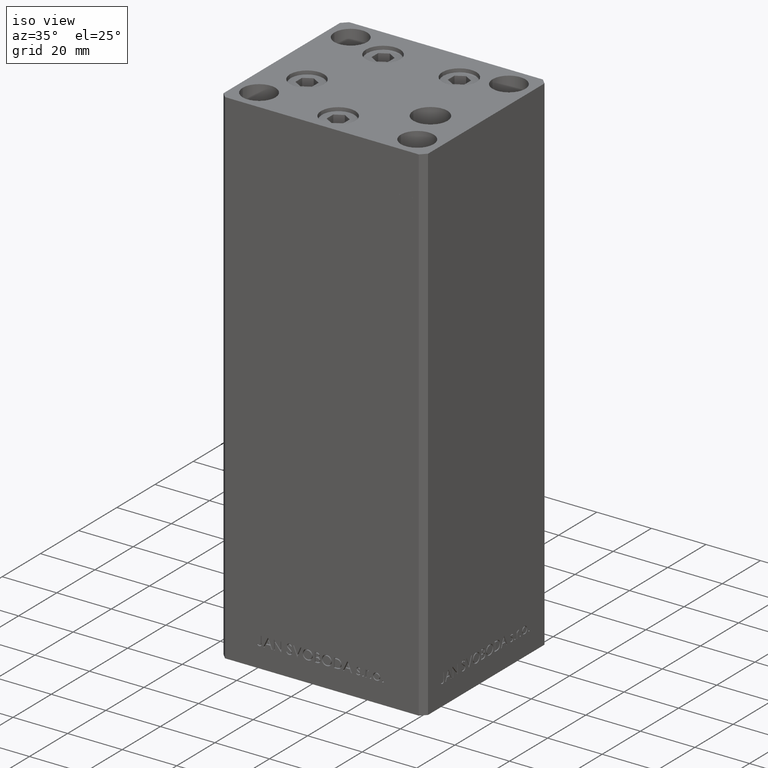
[diagram: clean part render]
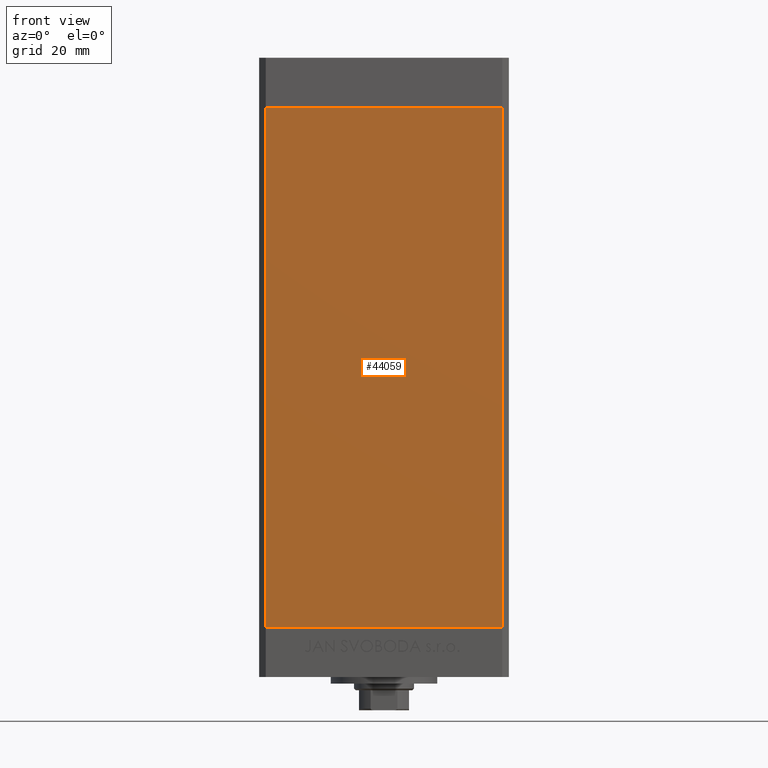
[diagram: tour spotlight — one face highlighted and labeled with its STEP entity id]
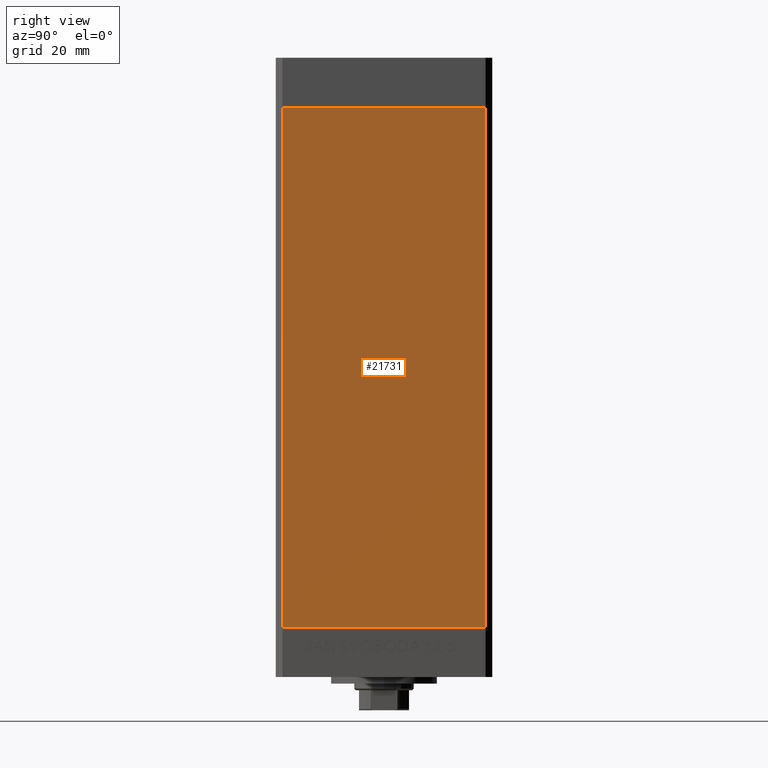
[diagram: tour spotlight — one face highlighted and labeled with its STEP entity id]
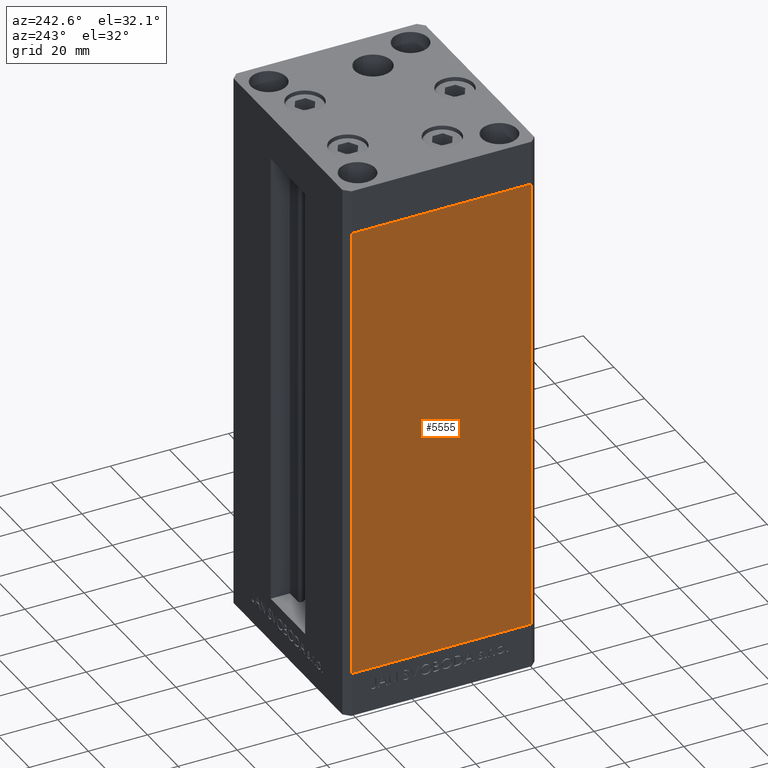
[diagram: tour spotlight — one face highlighted and labeled with its STEP entity id]
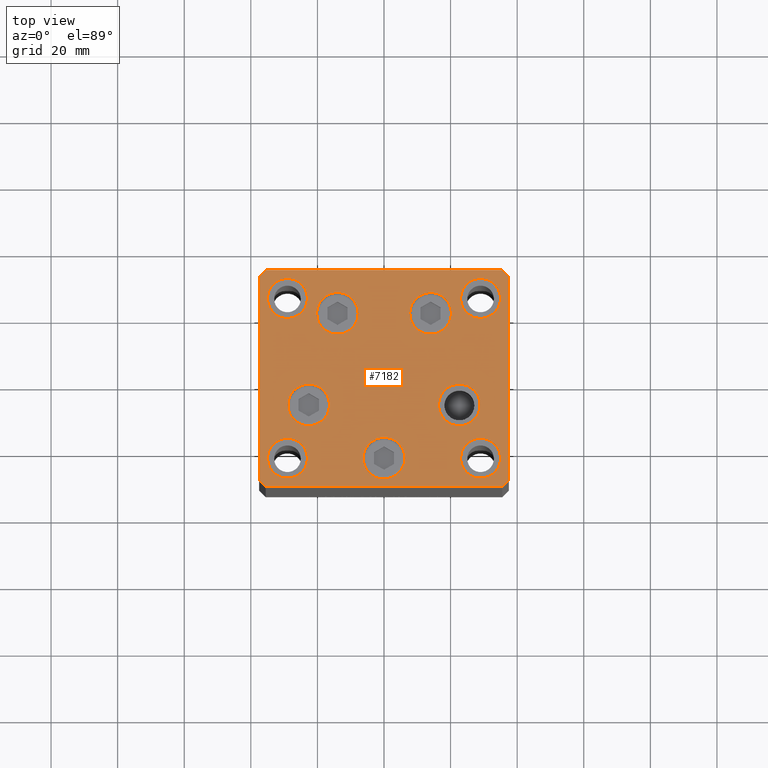
[diagram: tour spotlight — one face highlighted and labeled with its STEP entity id]
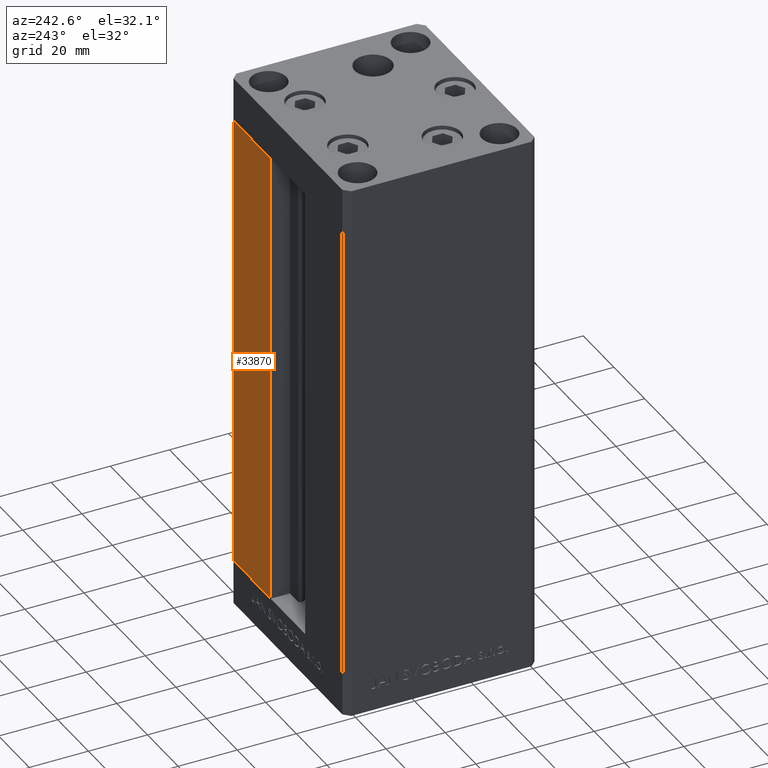
[diagram: tour spotlight — one face highlighted and labeled with its STEP entity id]
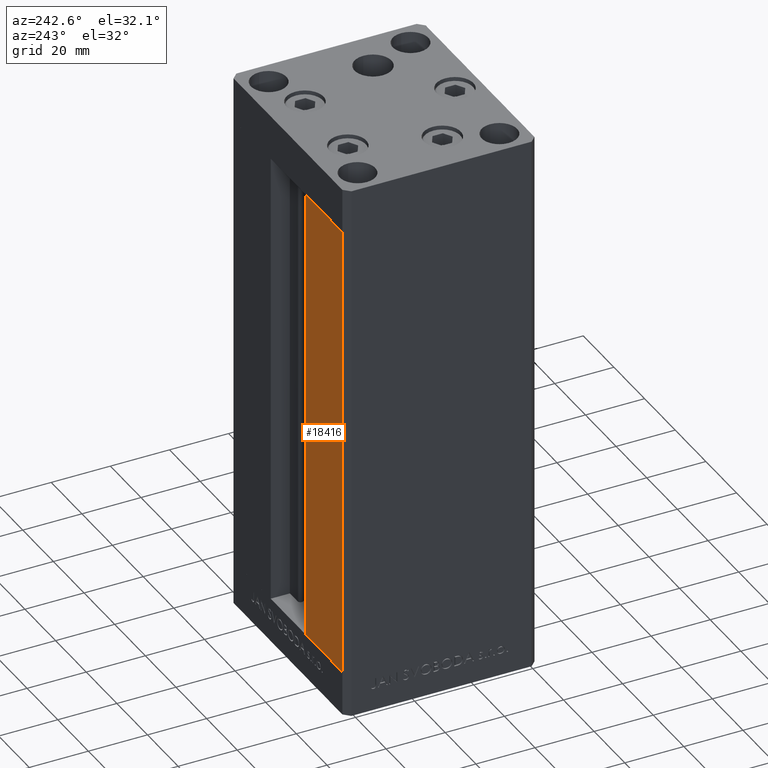
[diagram: tour spotlight — one face highlighted and labeled with its STEP entity id]
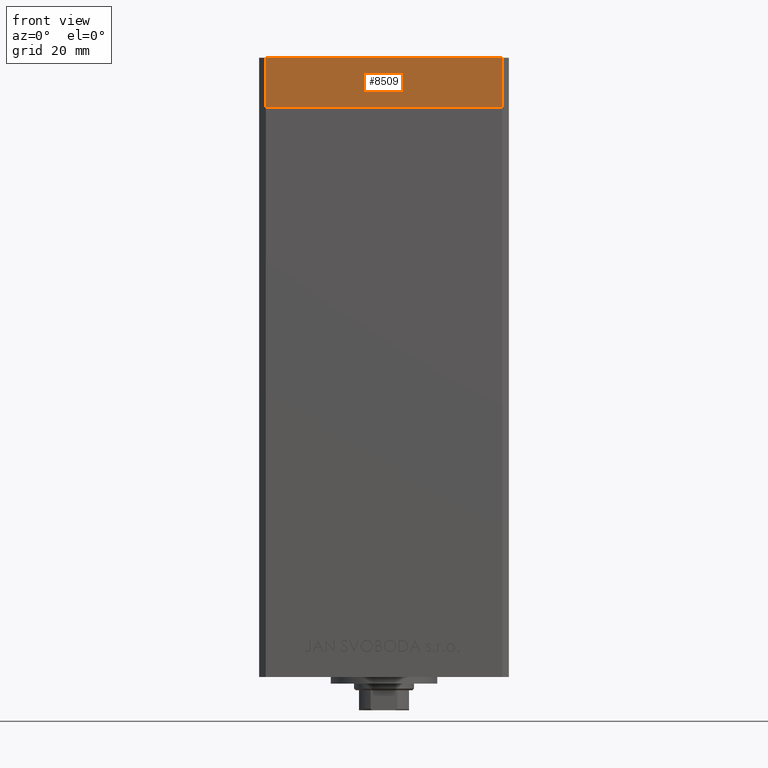
[diagram: tour spotlight — one face highlighted and labeled with its STEP entity id]
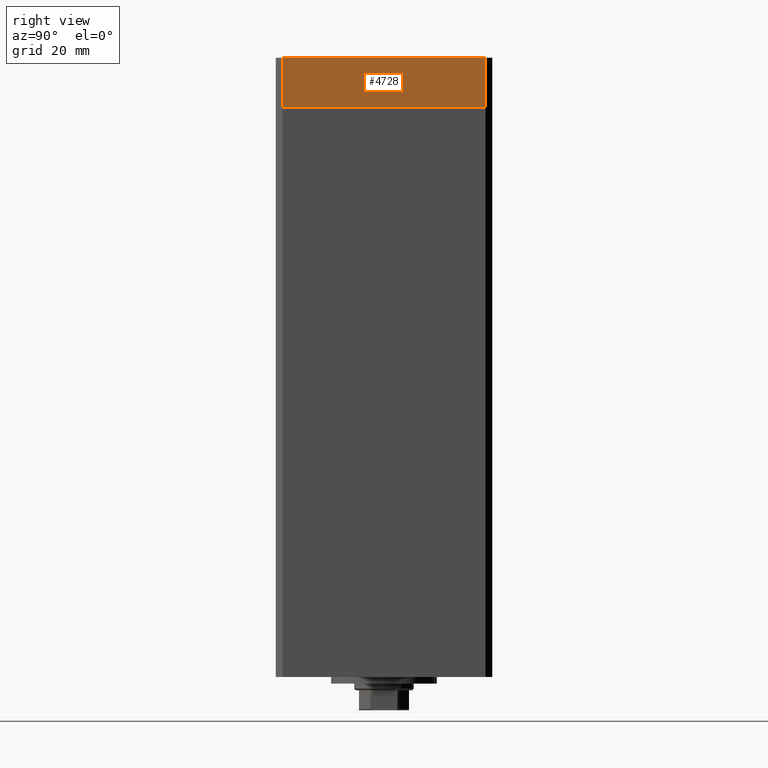
[diagram: tour spotlight — one face highlighted and labeled with its STEP entity id]
A machine part: a face-by-face anatomy tour. The part has 1159 B-rep faces; the first image is the clean iso view, then the 8 largest visible faces are spotlighted one at a time (largest first), each with its STEP entity span.

Face 1 — front view, entity #44059. In plain terms, the highlighted planar face has unit normal (0, 1, 0).
Definition (entity closure, byte-faithful):
#992 = VECTOR ( 'NONE', #23447, 1000.000000000000000 ) ;
#2630 = FACE_OUTER_BOUND ( 'NONE', #7012, .T. ) ;
#5835 = LINE ( 'NONE', #16482, #29723 ) ;
#7012 = EDGE_LOOP ( 'NONE', ( #22053, #7517, #36353, #34399 ) ) ;
#7517 = ORIENTED_EDGE ( 'NONE', *, *, #30264, .F. ) ;
#7868 = LINE ( 'NONE', #8341, #992 ) ;
#7996 = CARTESIAN_POINT ( 'NONE',  ( 35.49999999999999289, -32.50000000000000000, 156.0000000000000000 ) ) ;
#8341 = CARTESIAN_POINT ( 'NONE',  ( 35.49999999999999289, -32.50000000000000000, 156.0000000000000000 ) ) ;
#8815 = DIRECTION ( 'NONE',  ( -0.000000000000000000, -0.000000000000000000, -1.000000000000000000 ) ) ;
#12909 = CARTESIAN_POINT ( 'NONE',  ( -35.49999999999999289, -32.50000000000000000, 156.0000000000000000 ) ) ;
#13866 = VERTEX_POINT ( 'NONE', #18197 ) ;
#14238 = CARTESIAN_POINT ( 'NONE',  ( -35.49999999999999289, -32.50000000000000000, 0.000000000000000000 ) ) ;
#14625 = VECTOR ( 'NONE', #29338, 1000.000000000000000 ) ;
#16482 = CARTESIAN_POINT ( 'NONE',  ( -35.49999999999999289, -32.50000000000000000, 156.0000000000000000 ) ) ;
#16736 = VERTEX_POINT ( 'NONE', #32774 ) ;
#16975 = VERTEX_POINT ( 'NONE', #7996 ) ;
#17705 = PLANE ( 'NONE',  #36026 ) ;
#17947 = LINE ( 'NONE', #14238, #14625 ) ;
#18197 = CARTESIAN_POINT ( 'NONE',  ( -35.49999999999999289, -32.50000000000000000, 0.000000000000000000 ) ) ;
#22053 = ORIENTED_EDGE ( 'NONE', *, *, #35887, .T. ) ;
#23447 = DIRECTION ( 'NONE',  ( -0.000000000000000000, -0.000000000000000000, -1.000000000000000000 ) ) ;
#26581 = DIRECTION ( 'NONE',  ( 0.000000000000000000, -0.000000000000000000, 1.000000000000000000 ) ) ;
#28709 = EDGE_CURVE ( 'NONE', #43518, #16975, #39405, .T. ) ;
#29338 = DIRECTION ( 'NONE',  ( 1.000000000000000000, 0.000000000000000000, 0.000000000000000000 ) ) ;
#29723 = VECTOR ( 'NONE', #8815, 1000.000000000000000 ) ;
#30264 = EDGE_CURVE ( 'NONE', #16975, #16736, #7868, .T. ) ;
#30732 = CARTESIAN_POINT ( 'NONE',  ( -35.49999999999999289, -32.50000000000000000, 156.0000000000000000 ) ) ;
#31781 = VECTOR ( 'NONE', #47564, 1000.000000000000000 ) ;
#32774 = CARTESIAN_POINT ( 'NONE',  ( 35.49999999999999289, -32.50000000000000000, 0.000000000000000000 ) ) ;
#32804 = CARTESIAN_POINT ( 'NONE',  ( -35.49999999999999289, -32.50000000000000000, 156.0000000000000000 ) ) ;
#34399 = ORIENTED_EDGE ( 'NONE', *, *, #43949, .T. ) ;
#35887 = EDGE_CURVE ( 'NONE', #13866, #16736, #17947, .T. ) ;
#36026 = AXIS2_PLACEMENT_3D ( 'NONE', #32804, #47896, #26581 ) ;
#36353 = ORIENTED_EDGE ( 'NONE', *, *, #28709, .F. ) ;
#39405 = LINE ( 'NONE', #12909, #31781 ) ;
#43518 = VERTEX_POINT ( 'NONE', #30732 ) ;
#43949 = EDGE_CURVE ( 'NONE', #43518, #13866, #5835, .T. ) ;
#44059 = ADVANCED_FACE ( 'NONE', ( #2630 ), #17705, .F. ) ;
#47564 = DIRECTION ( 'NONE',  ( 1.000000000000000000, 0.000000000000000000, 0.000000000000000000 ) ) ;
#47896 = DIRECTION ( 'NONE',  ( 0.000000000000000000, 1.000000000000000000, 0.000000000000000000 ) ) ;

Face 2 — right view, entity #21731. In plain terms, the highlighted planar face has unit normal (1, -0, 0).
Definition (entity closure, byte-faithful):
#2044 = VECTOR ( 'NONE', #20394, 1000.000000000000000 ) ;
#2454 = AXIS2_PLACEMENT_3D ( 'NONE', #35882, #9660, #32430 ) ;
#2867 = VECTOR ( 'NONE', #22385, 1000.000000000000000 ) ;
#3361 = VECTOR ( 'NONE', #32575, 1000.000000000000000 ) ;
#4114 = CARTESIAN_POINT ( 'NONE',  ( 37.49999999999999289, -30.50000000000000000, 0.000000000000000000 ) ) ;
#4517 = EDGE_CURVE ( 'NONE', #35596, #24764, #21633, .T. ) ;
#9660 = DIRECTION ( 'NONE',  ( 1.000000000000000000, -2.275047181608927644E-16, 0.000000000000000000 ) ) ;
#10040 = VECTOR ( 'NONE', #33015, 1000.000000000000000 ) ;
#12691 = CARTESIAN_POINT ( 'NONE',  ( 37.49999999999999289, -30.50000000000000000, 156.0000000000000000 ) ) ;
#12972 = CARTESIAN_POINT ( 'NONE',  ( 37.50000000000000711, 30.50000000000000000, 156.0000000000000000 ) ) ;
#13665 = ORIENTED_EDGE ( 'NONE', *, *, #4517, .F. ) ;
#17167 = LINE ( 'NONE', #21138, #2044 ) ;
#18394 = CARTESIAN_POINT ( 'NONE',  ( 37.50000000000000711, 30.50000000000000000, 0.000000000000000000 ) ) ;
#20317 = ORIENTED_EDGE ( 'NONE', *, *, #37857, .F. ) ;
#20394 = DIRECTION ( 'NONE',  ( -0.000000000000000000, -0.000000000000000000, -1.000000000000000000 ) ) ;
#21138 = CARTESIAN_POINT ( 'NONE',  ( 37.50000000000000711, 30.50000000000000000, 156.0000000000000000 ) ) ;
#21448 = CARTESIAN_POINT ( 'NONE',  ( 37.50000000000000711, 30.50000000000000000, 156.0000000000000000 ) ) ;
#21633 = LINE ( 'NONE', #18394, #10040 ) ;
#21731 = ADVANCED_FACE ( 'NONE', ( #24993 ), #35645, .T. ) ;
#21934 = LINE ( 'NONE', #21448, #3361 ) ;
#22385 = DIRECTION ( 'NONE',  ( -0.000000000000000000, -0.000000000000000000, -1.000000000000000000 ) ) ;
#24764 = VERTEX_POINT ( 'NONE', #4114 ) ;
#24993 = FACE_OUTER_BOUND ( 'NONE', #33254, .T. ) ;
#27808 = ORIENTED_EDGE ( 'NONE', *, *, #39701, .T. ) ;
#29394 = CARTESIAN_POINT ( 'NONE',  ( 37.50000000000000711, 30.50000000000000000, 0.000000000000000000 ) ) ;
#29649 = EDGE_CURVE ( 'NONE', #33985, #40624, #21934, .T. ) ;
#32430 = DIRECTION ( 'NONE',  ( 2.275047181608927644E-16, 1.000000000000000000, 0.000000000000000000 ) ) ;
#32575 = DIRECTION ( 'NONE',  ( -2.275047181608927644E-16, -1.000000000000000000, 0.000000000000000000 ) ) ;
#33015 = DIRECTION ( 'NONE',  ( -2.275047181608927644E-16, -1.000000000000000000, 0.000000000000000000 ) ) ;
#33254 = EDGE_LOOP ( 'NONE', ( #13665, #20317, #36878, #27808 ) ) ;
#33985 = VERTEX_POINT ( 'NONE', #12972 ) ;
#35596 = VERTEX_POINT ( 'NONE', #29394 ) ;
#35645 = PLANE ( 'NONE',  #2454 ) ;
#35882 = CARTESIAN_POINT ( 'NONE',  ( 37.50000000000000711, 30.50000000000000000, 156.0000000000000000 ) ) ;
#36878 = ORIENTED_EDGE ( 'NONE', *, *, #29649, .T. ) ;
#37004 = LINE ( 'NONE', #37712, #2867 ) ;
#37712 = CARTESIAN_POINT ( 'NONE',  ( 37.49999999999999289, -30.50000000000000000, 156.0000000000000000 ) ) ;
#37857 = EDGE_CURVE ( 'NONE', #33985, #35596, #17167, .T. ) ;
#39701 = EDGE_CURVE ( 'NONE', #40624, #24764, #37004, .T. ) ;
#40624 = VERTEX_POINT ( 'NONE', #12691 ) ;

Face 3 — auxiliary view, entity #5555. In plain terms, the highlighted planar face has unit normal (1, 0, 0).
Definition (entity closure, byte-faithful):
#193 = EDGE_LOOP ( 'NONE', ( #43047, #21034, #38198, #31215 ) ) ;
#497 = VERTEX_POINT ( 'NONE', #13589 ) ;
#518 = DIRECTION ( 'NONE',  ( 1.000000000000000000, 2.275047181608927644E-16, -0.000000000000000000 ) ) ;
#3760 = LINE ( 'NONE', #35872, #41253 ) ;
#5555 = ADVANCED_FACE ( 'NONE', ( #19799 ), #26735, .F. ) ;
#8717 = DIRECTION ( 'NONE',  ( 2.275047181608927644E-16, -1.000000000000000000, 0.000000000000000000 ) ) ;
#12348 = VECTOR ( 'NONE', #15077, 1000.000000000000000 ) ;
#12897 = VECTOR ( 'NONE', #8717, 1000.000000000000000 ) ;
#13589 = CARTESIAN_POINT ( 'NONE',  ( -37.50000000000000711, 30.50000000000000000, 156.0000000000000000 ) ) ;
#15077 = DIRECTION ( 'NONE',  ( -0.000000000000000000, -0.000000000000000000, -1.000000000000000000 ) ) ;
#19799 = FACE_OUTER_BOUND ( 'NONE', #193, .T. ) ;
#20337 = CARTESIAN_POINT ( 'NONE',  ( -37.50000000000000711, 30.50000000000000000, 156.0000000000000000 ) ) ;
#21034 = ORIENTED_EDGE ( 'NONE', *, *, #28871, .F. ) ;
#22566 = DIRECTION ( 'NONE',  ( 2.275047181608927644E-16, -1.000000000000000000, 0.000000000000000000 ) ) ;
#25513 = CARTESIAN_POINT ( 'NONE',  ( -37.49999999999999289, -30.50000000000000000, 0.000000000000000000 ) ) ;
#26735 = PLANE ( 'NONE',  #33788 ) ;
#28871 = EDGE_CURVE ( 'NONE', #40020, #47907, #3760, .T. ) ;
#29301 = CARTESIAN_POINT ( 'NONE',  ( -37.50000000000000711, 30.50000000000000000, 0.000000000000000000 ) ) ;
#30000 = CARTESIAN_POINT ( 'NONE',  ( -37.50000000000000711, 30.50000000000000000, 0.000000000000000000 ) ) ;
#30946 = DIRECTION ( 'NONE',  ( -2.275047181608927644E-16, 1.000000000000000000, 0.000000000000000000 ) ) ;
#31003 = LINE ( 'NONE', #20337, #12897 ) ;
#31215 = ORIENTED_EDGE ( 'NONE', *, *, #45069, .T. ) ;
#32279 = EDGE_CURVE ( 'NONE', #497, #40020, #31003, .T. ) ;
#33653 = LINE ( 'NONE', #37359, #12348 ) ;
#33788 = AXIS2_PLACEMENT_3D ( 'NONE', #48779, #518, #30946 ) ;
#34700 = CARTESIAN_POINT ( 'NONE',  ( -37.49999999999999289, -30.50000000000000000, 156.0000000000000000 ) ) ;
#35018 = EDGE_CURVE ( 'NONE', #37932, #47907, #45567, .T. ) ;
#35872 = CARTESIAN_POINT ( 'NONE',  ( -37.49999999999999289, -30.50000000000000000, 156.0000000000000000 ) ) ;
#37359 = CARTESIAN_POINT ( 'NONE',  ( -37.50000000000000711, 30.50000000000000000, 156.0000000000000000 ) ) ;
#37932 = VERTEX_POINT ( 'NONE', #29301 ) ;
#38198 = ORIENTED_EDGE ( 'NONE', *, *, #32279, .F. ) ;
#40020 = VERTEX_POINT ( 'NONE', #34700 ) ;
#41253 = VECTOR ( 'NONE', #47009, 1000.000000000000000 ) ;
#43047 = ORIENTED_EDGE ( 'NONE', *, *, #35018, .T. ) ;
#45069 = EDGE_CURVE ( 'NONE', #497, #37932, #33653, .T. ) ;
#45567 = LINE ( 'NONE', #30000, #47781 ) ;
#47009 = DIRECTION ( 'NONE',  ( -0.000000000000000000, -0.000000000000000000, -1.000000000000000000 ) ) ;
#47781 = VECTOR ( 'NONE', #22566, 1000.000000000000000 ) ;
#47907 = VERTEX_POINT ( 'NONE', #25513 ) ;
#48779 = CARTESIAN_POINT ( 'NONE',  ( -37.50000000000000711, 30.50000000000000000, 156.0000000000000000 ) ) ;

Face 4 — top view, entity #7182. In plain terms, the highlighted planar face has unit normal (0, 0, 1).
Definition (entity closure, byte-faithful):
#17 = CIRCLE ( 'NONE', #15791, 6.000000000000005329 ) ;
#29 = DIRECTION ( 'NONE',  ( 1.000000000000000000, 0.000000000000000000, 0.000000000000000000 ) ) ;
#100 = CARTESIAN_POINT ( 'NONE',  ( 28.87741699796952233, -8.000000000000000000, 0.000000000000000000 ) ) ;
#175 = CARTESIAN_POINT ( 'NONE',  ( -13.99106857963322703, 19.49999999999999645, 0.000000000000000000 ) ) ;
#525 = DIRECTION ( 'NONE',  ( 1.000000000000000000, 0.000000000000000000, 0.000000000000000000 ) ) ;
#534 = CARTESIAN_POINT ( 'NONE',  ( 2.939152317953647500E-15, -24.00000000000000000, 0.000000000000000000 ) ) ;
#569 = ORIENTED_EDGE ( 'NONE', *, *, #34116, .T. ) ;
#624 = VERTEX_POINT ( 'NONE', #6434 ) ;
#862 = PLANE ( 'NONE',  #5263 ) ;
#906 = DIRECTION ( 'NONE',  ( 0.000000000000000000, -0.000000000000000000, -1.000000000000000000 ) ) ;
#935 = CARTESIAN_POINT ( 'NONE',  ( -23.00000000000001421, 24.00000000000000711, 0.000000000000000000 ) ) ;
#1019 = CARTESIAN_POINT ( 'NONE',  ( -29.00000000000001066, 24.00000000000000711, 0.000000000000000000 ) ) ;
#1531 = DIRECTION ( 'NONE',  ( 0.000000000000000000, 0.000000000000000000, 1.000000000000000000 ) ) ;
#1570 = CARTESIAN_POINT ( 'NONE',  ( -35.50000000000002842, 32.49999999999999289, 0.000000000000000000 ) ) ;
#2186 = VERTEX_POINT ( 'NONE', #15656 ) ;
#2360 = CARTESIAN_POINT ( 'NONE',  ( -23.00000000000001421, -23.99999999999999289, 0.000000000000000000 ) ) ;
#2364 = ORIENTED_EDGE ( 'NONE', *, *, #12360, .T. ) ;
#3194 = CARTESIAN_POINT ( 'NONE',  ( -22.62741699796951877, -8.000000000000005329, 0.000000000000000000 ) ) ;
#3740 = DIRECTION ( 'NONE',  ( 0.000000000000000000, 0.000000000000000000, 1.000000000000000000 ) ) ;
#3830 = AXIS2_PLACEMENT_3D ( 'NONE', #44115, #48077, #35273 ) ;
#3870 = VECTOR ( 'NONE', #27285, 1000.000000000000000 ) ;
#4244 = DIRECTION ( 'NONE',  ( 0.000000000000000000, -0.000000000000000000, -1.000000000000000000 ) ) ;
#4265 = CIRCLE ( 'NONE', #14554, 6.250000000000000000 ) ;
#4298 = AXIS2_PLACEMENT_3D ( 'NONE', #1019, #46537, #15616 ) ;
#4326 = EDGE_CURVE ( 'NONE', #16864, #2186, #12388, .T. ) ;
#4519 = VERTEX_POINT ( 'NONE', #21873 ) ;
#4538 = AXIS2_PLACEMENT_3D ( 'NONE', #44750, #10846, #37556 ) ;
#4551 = LINE ( 'NONE', #41653, #44058 ) ;
#4582 = FACE_BOUND ( 'NONE', #27796, .T. ) ;
#4634 = DIRECTION ( 'NONE',  ( 0.000000000000000000, 0.000000000000000000, 1.000000000000000000 ) ) ;
#4796 = CARTESIAN_POINT ( 'NONE',  ( 23.00000000000001066, -23.99999999999999289, 0.000000000000000000 ) ) ;
#4902 = EDGE_CURVE ( 'NONE', #10477, #31924, #26624, .T. ) ;
#5032 = ORIENTED_EDGE ( 'NONE', *, *, #39802, .T. ) ;
#5263 = AXIS2_PLACEMENT_3D ( 'NONE', #35000, #28237, #19663 ) ;
#5302 = AXIS2_PLACEMENT_3D ( 'NONE', #18825, #3740, #29 ) ;
#5408 = CIRCLE ( 'NONE', #41747, 6.250000000000000000 ) ;
#5634 = ORIENTED_EDGE ( 'NONE', *, *, #41973, .T. ) ;
#5639 = DIRECTION ( 'NONE',  ( 0.000000000000000000, 0.000000000000000000, 1.000000000000000000 ) ) ;
#5700 = CARTESIAN_POINT ( 'NONE',  ( 37.49999999999992184, 30.50000000000001066, 0.000000000000000000 ) ) ;
#5724 = FACE_BOUND ( 'NONE', #33645, .T. ) ;
#5738 = ORIENTED_EDGE ( 'NONE', *, *, #33249, .T. ) ;
#5824 = ORIENTED_EDGE ( 'NONE', *, *, #16848, .T. ) ;
#5936 = DIRECTION ( 'NONE',  ( 0.000000000000000000, 0.000000000000000000, 1.000000000000000000 ) ) ;
#6012 = DIRECTION ( 'NONE',  ( 1.000000000000000000, 0.000000000000000000, 0.000000000000000000 ) ) ;
#6434 = CARTESIAN_POINT ( 'NONE',  ( -35.50000000000002842, 32.49999999999999289, 0.000000000000000000 ) ) ;
#6482 = EDGE_LOOP ( 'NONE', ( #22228, #9236 ) ) ;
#6638 = CARTESIAN_POINT ( 'NONE',  ( -37.49999999999998579, -30.50000000000001421, 0.000000000000000000 ) ) ;
#6676 = AXIS2_PLACEMENT_3D ( 'NONE', #534, #4244, #19329 ) ;
#6698 = CARTESIAN_POINT ( 'NONE',  ( 37.50000000000001421, -30.50000000000000711, 0.000000000000000000 ) ) ;
#6829 = CIRCLE ( 'NONE', #11578, 5.999999999999998224 ) ;
#7182 = ADVANCED_FACE ( 'NONE', ( #28733, #47537, #32200, #4582, #38465, #5724, #36409, #31949, #13127, #23369 ), #862, .T. ) ;
#7215 = CIRCLE ( 'NONE', #8010, 6.250000000000000000 ) ;
#7571 = EDGE_CURVE ( 'NONE', #15423, #40341, #47235, .T. ) ;
#7627 = EDGE_CURVE ( 'NONE', #35674, #18314, #32146, .T. ) ;
#7963 = CARTESIAN_POINT ( 'NONE',  ( -20.24106857963322881, 19.49999999999999645, 0.000000000000000000 ) ) ;
#8010 = AXIS2_PLACEMENT_3D ( 'NONE', #11218, #34004, #45361 ) ;
#8139 = EDGE_CURVE ( 'NONE', #23921, #22955, #47363, .T. ) ;
#8219 = ORIENTED_EDGE ( 'NONE', *, *, #4326, .T. ) ;
#8617 = CIRCLE ( 'NONE', #14950, 6.000000000000005329 ) ;
#9212 = AXIS2_PLACEMENT_3D ( 'NONE', #3194, #33381, #37093 ) ;
#9236 = ORIENTED_EDGE ( 'NONE', *, *, #45558, .F. ) ;
#9432 = CIRCLE ( 'NONE', #22100, 6.000000000000005329 ) ;
#9470 = CARTESIAN_POINT ( 'NONE',  ( -35.49999999999998579, -32.50000000000001421, 0.000000000000000000 ) ) ;
#9813 = CARTESIAN_POINT ( 'NONE',  ( 35.50000000000000711, -32.50000000000000711, 0.000000000000000000 ) ) ;
#9835 = DIRECTION ( 'NONE',  ( 1.000000000000000000, 0.000000000000000000, 0.000000000000000000 ) ) ;
#9899 = DIRECTION ( 'NONE',  ( 1.000000000000000000, 0.000000000000000000, 0.000000000000000000 ) ) ;
#9915 = VERTEX_POINT ( 'NONE', #24793 ) ;
#9979 = VERTEX_POINT ( 'NONE', #27476 ) ;
#10231 = DIRECTION ( 'NONE',  ( 1.000000000000000000, 0.000000000000000000, 0.000000000000000000 ) ) ;
#10339 = CARTESIAN_POINT ( 'NONE',  ( -35.49999999999998579, -32.50000000000001421, 0.000000000000000000 ) ) ;
#10399 = VERTEX_POINT ( 'NONE', #38979 ) ;
#10477 = VERTEX_POINT ( 'NONE', #2360 ) ;
#10846 = DIRECTION ( 'NONE',  ( 0.000000000000000000, -0.000000000000000000, -1.000000000000000000 ) ) ;
#11218 = CARTESIAN_POINT ( 'NONE',  ( 2.939152317953647500E-15, -24.00000000000000000, 0.000000000000000000 ) ) ;
#11238 = EDGE_CURVE ( 'NONE', #22892, #41286, #5408, .T. ) ;
#11578 = AXIS2_PLACEMENT_3D ( 'NONE', #40161, #33482, #10231 ) ;
#11615 = VECTOR ( 'NONE', #40057, 1000.000000000000000 ) ;
#11898 = CARTESIAN_POINT ( 'NONE',  ( 6.250000000000002665, -24.00000000000000000, 0.000000000000000000 ) ) ;
#11924 = EDGE_CURVE ( 'NONE', #45095, #16274, #36135, .T. ) ;
#12029 = EDGE_CURVE ( 'NONE', #42327, #9915, #29128, .T. ) ;
#12044 = CARTESIAN_POINT ( 'NONE',  ( -7.741068579633227031, 19.49999999999999645, 0.000000000000000000 ) ) ;
#12048 = ORIENTED_EDGE ( 'NONE', *, *, #41593, .F. ) ;
#12117 = ORIENTED_EDGE ( 'NONE', *, *, #18415, .T. ) ;
#12360 = EDGE_CURVE ( 'NONE', #34951, #15423, #22207, .T. ) ;
#12388 = CIRCLE ( 'NONE', #4538, 6.250000000000001776 ) ;
#12596 = EDGE_CURVE ( 'NONE', #9979, #10399, #46492, .T. ) ;
#12683 = LINE ( 'NONE', #1570, #18669 ) ;
#12988 = DIRECTION ( 'NONE',  ( 1.000000000000000000, 0.000000000000000000, 0.000000000000000000 ) ) ;
#13127 = FACE_BOUND ( 'NONE', #48192, .T. ) ;
#14288 = ORIENTED_EDGE ( 'NONE', *, *, #17909, .F. ) ;
#14554 = AXIS2_PLACEMENT_3D ( 'NONE', #34188, #19321, #525 ) ;
#14890 = VECTOR ( 'NONE', #44046, 999.9999999999998863 ) ;
#14950 = AXIS2_PLACEMENT_3D ( 'NONE', #25109, #41178, #33037 ) ;
#15423 = VERTEX_POINT ( 'NONE', #9813 ) ;
#15534 = VECTOR ( 'NONE', #25820, 1000.000000000000000 ) ;
#15616 = DIRECTION ( 'NONE',  ( 1.000000000000000000, 0.000000000000000000, 0.000000000000000000 ) ) ;
#15656 = CARTESIAN_POINT ( 'NONE',  ( 16.37741699796951877, -8.000000000000000000, 0.000000000000000000 ) ) ;
#15791 = AXIS2_PLACEMENT_3D ( 'NONE', #39484, #4634, #12988 ) ;
#15909 = LINE ( 'NONE', #34733, #3870 ) ;
#15925 = DIRECTION ( 'NONE',  ( -0.7071067811865426878, -0.7071067811865524577, 0.000000000000000000 ) ) ;
#16217 = EDGE_LOOP ( 'NONE', ( #27871, #8219 ) ) ;
#16222 = DIRECTION ( 'NONE',  ( 1.000000000000000000, 0.000000000000000000, 0.000000000000000000 ) ) ;
#16274 = VERTEX_POINT ( 'NONE', #26915 ) ;
#16848 = EDGE_CURVE ( 'NONE', #16274, #624, #15909, .T. ) ;
#16864 = VERTEX_POINT ( 'NONE', #100 ) ;
#17349 = VECTOR ( 'NONE', #33177, 1000.000000000000000 ) ;
#17841 = ORIENTED_EDGE ( 'NONE', *, *, #11924, .T. ) ;
#17909 = EDGE_CURVE ( 'NONE', #23624, #40362, #8617, .T. ) ;
#18314 = VERTEX_POINT ( 'NONE', #27486 ) ;
#18415 = EDGE_CURVE ( 'NONE', #40341, #45095, #21546, .T. ) ;
#18669 = VECTOR ( 'NONE', #15925, 1000.000000000000000 ) ;
#18805 = EDGE_CURVE ( 'NONE', #40362, #23624, #9432, .T. ) ;
#18825 = CARTESIAN_POINT ( 'NONE',  ( -29.00000000000001066, -23.99999999999999289, 0.000000000000000000 ) ) ;
#19270 = CARTESIAN_POINT ( 'NONE',  ( 37.49999999999992184, 30.50000000000001066, 0.000000000000000000 ) ) ;
#19310 = CIRCLE ( 'NONE', #6676, 6.250000000000000000 ) ;
#19321 = DIRECTION ( 'NONE',  ( 0.000000000000000000, -0.000000000000000000, -1.000000000000000000 ) ) ;
#19329 = DIRECTION ( 'NONE',  ( 1.000000000000000000, 0.000000000000000000, 0.000000000000000000 ) ) ;
#19663 = DIRECTION ( 'NONE',  ( 1.000000000000000000, 0.000000000000000000, 0.000000000000000000 ) ) ;
#19864 = EDGE_CURVE ( 'NONE', #9915, #42327, #17, .T. ) ;
#20078 = CIRCLE ( 'NONE', #4298, 5.999999999999998224 ) ;
#20329 = ORIENTED_EDGE ( 'NONE', *, *, #33343, .T. ) ;
#20854 = DIRECTION ( 'NONE',  ( 0.000000000000000000, -0.000000000000000000, -1.000000000000000000 ) ) ;
#21546 = LINE ( 'NONE', #32428, #17349 ) ;
#21873 = CARTESIAN_POINT ( 'NONE',  ( -35.00000000000000711, 24.00000000000000711, 0.000000000000000000 ) ) ;
#22035 = AXIS2_PLACEMENT_3D ( 'NONE', #39838, #5936, #9899 ) ;
#22100 = AXIS2_PLACEMENT_3D ( 'NONE', #36570, #5639, #9835 ) ;
#22207 = LINE ( 'NONE', #10339, #22802 ) ;
#22228 = ORIENTED_EDGE ( 'NONE', *, *, #34279, .F. ) ;
#22802 = VECTOR ( 'NONE', #40521, 1000.000000000000000 ) ;
#22892 = VERTEX_POINT ( 'NONE', #7963 ) ;
#22955 = VERTEX_POINT ( 'NONE', #6638 ) ;
#23369 = FACE_OUTER_BOUND ( 'NONE', #26951, .T. ) ;
#23544 = EDGE_CURVE ( 'NONE', #26472, #34342, #7215, .T. ) ;
#23624 = VERTEX_POINT ( 'NONE', #31246 ) ;
#23893 = ORIENTED_EDGE ( 'NONE', *, *, #4902, .F. ) ;
#23921 = VERTEX_POINT ( 'NONE', #31438 ) ;
#23952 = ORIENTED_EDGE ( 'NONE', *, *, #18805, .F. ) ;
#24793 = CARTESIAN_POINT ( 'NONE',  ( 35.00000000000001421, -23.99999999999999289, 0.000000000000000000 ) ) ;
#24832 = CARTESIAN_POINT ( 'NONE',  ( -37.50000000000001421, 30.49999999999998579, 0.000000000000000000 ) ) ;
#25007 = EDGE_LOOP ( 'NONE', ( #46802, #5634 ) ) ;
#25109 = CARTESIAN_POINT ( 'NONE',  ( 29.00000000000001066, 24.00000000000000711, 0.000000000000000000 ) ) ;
#25820 = DIRECTION ( 'NONE',  ( 4.550094363217855288E-16, -1.000000000000000000, 0.000000000000000000 ) ) ;
#26469 = DIRECTION ( 'NONE',  ( 1.000000000000000000, 0.000000000000000000, 0.000000000000000000 ) ) ;
#26472 = VERTEX_POINT ( 'NONE', #36244 ) ;
#26579 = EDGE_LOOP ( 'NONE', ( #23893, #12048 ) ) ;
#26624 = CIRCLE ( 'NONE', #5302, 5.999999999999998224 ) ;
#26915 = CARTESIAN_POINT ( 'NONE',  ( 35.49999999999992184, 32.50000000000000711, 0.000000000000000000 ) ) ;
#26951 = EDGE_LOOP ( 'NONE', ( #47302, #2364, #41426, #12117, #17841, #5824, #5032, #32066 ) ) ;
#27180 = CIRCLE ( 'NONE', #46125, 6.250000000000001776 ) ;
#27257 = DIRECTION ( 'NONE',  ( 1.000000000000000000, 0.000000000000000000, 0.000000000000000000 ) ) ;
#27285 = DIRECTION ( 'NONE',  ( -1.000000000000000000, -1.954618001100629052E-16, 0.000000000000000000 ) ) ;
#27476 = CARTESIAN_POINT ( 'NONE',  ( 7.741068579633223479, 19.50000000000000000, 0.000000000000000000 ) ) ;
#27486 = CARTESIAN_POINT ( 'NONE',  ( -16.37741699796951877, -8.000000000000005329, 0.000000000000000000 ) ) ;
#27796 = EDGE_LOOP ( 'NONE', ( #46741, #569 ) ) ;
#27871 = ORIENTED_EDGE ( 'NONE', *, *, #43372, .T. ) ;
#28034 = CIRCLE ( 'NONE', #35952, 5.999999999999998224 ) ;
#28237 = DIRECTION ( 'NONE',  ( -0.000000000000000000, 0.000000000000000000, 1.000000000000000000 ) ) ;
#28532 = CARTESIAN_POINT ( 'NONE',  ( 22.62741699796951877, -8.000000000000000000, 0.000000000000000000 ) ) ;
#28538 = EDGE_LOOP ( 'NONE', ( #30747, #20329 ) ) ;
#28698 = CARTESIAN_POINT ( 'NONE',  ( -22.62741699796951877, -8.000000000000005329, 0.000000000000000000 ) ) ;
#28733 = FACE_BOUND ( 'NONE', #40055, .T. ) ;
#29128 = CIRCLE ( 'NONE', #22035, 6.000000000000005329 ) ;
#29225 = CARTESIAN_POINT ( 'NONE',  ( 23.00000000000001066, 24.00000000000000711, 0.000000000000000000 ) ) ;
#29288 = ORIENTED_EDGE ( 'NONE', *, *, #11238, .T. ) ;
#30197 = DIRECTION ( 'NONE',  ( 0.000000000000000000, -0.000000000000000000, -1.000000000000000000 ) ) ;
#30291 = VERTEX_POINT ( 'NONE', #935 ) ;
#30747 = ORIENTED_EDGE ( 'NONE', *, *, #7627, .T. ) ;
#31228 = CIRCLE ( 'NONE', #37550, 6.250000000000000000 ) ;
#31246 = CARTESIAN_POINT ( 'NONE',  ( 35.00000000000001421, 24.00000000000000711, 0.000000000000000000 ) ) ;
#31331 = ORIENTED_EDGE ( 'NONE', *, *, #19864, .F. ) ;
#31438 = CARTESIAN_POINT ( 'NONE',  ( -37.50000000000001421, 30.49999999999998579, 0.000000000000000000 ) ) ;
#31924 = VERTEX_POINT ( 'NONE', #34052 ) ;
#31949 = FACE_BOUND ( 'NONE', #6482, .T. ) ;
#32066 = ORIENTED_EDGE ( 'NONE', *, *, #8139, .T. ) ;
#32146 = CIRCLE ( 'NONE', #9212, 6.250000000000001776 ) ;
#32200 = FACE_BOUND ( 'NONE', #16217, .T. ) ;
#32428 = CARTESIAN_POINT ( 'NONE',  ( 37.50000000000001421, -30.50000000000000711, 0.000000000000000000 ) ) ;
#33037 = DIRECTION ( 'NONE',  ( 1.000000000000000000, 0.000000000000000000, 0.000000000000000000 ) ) ;
#33177 = DIRECTION ( 'NONE',  ( -1.478780668045802821E-15, 1.000000000000000000, 0.000000000000000000 ) ) ;
#33249 = EDGE_CURVE ( 'NONE', #41286, #22892, #4265, .T. ) ;
#33343 = EDGE_CURVE ( 'NONE', #18314, #35674, #27180, .T. ) ;
#33381 = DIRECTION ( 'NONE',  ( 0.000000000000000000, -0.000000000000000000, -1.000000000000000000 ) ) ;
#33482 = DIRECTION ( 'NONE',  ( 0.000000000000000000, 0.000000000000000000, 1.000000000000000000 ) ) ;
#33645 = EDGE_LOOP ( 'NONE', ( #31331, #42360 ) ) ;
#34004 = DIRECTION ( 'NONE',  ( 0.000000000000000000, -0.000000000000000000, -1.000000000000000000 ) ) ;
#34052 = CARTESIAN_POINT ( 'NONE',  ( -35.00000000000000711, -23.99999999999999289, 0.000000000000000000 ) ) ;
#34116 = EDGE_CURVE ( 'NONE', #34342, #26472, #19310, .T. ) ;
#34188 = CARTESIAN_POINT ( 'NONE',  ( -13.99106857963322703, 19.49999999999999645, 0.000000000000000000 ) ) ;
#34279 = EDGE_CURVE ( 'NONE', #30291, #4519, #20078, .T. ) ;
#34342 = VERTEX_POINT ( 'NONE', #11898 ) ;
#34423 = CIRCLE ( 'NONE', #45460, 6.250000000000001776 ) ;
#34733 = CARTESIAN_POINT ( 'NONE',  ( 35.49999999999992184, 32.50000000000000711, 0.000000000000000000 ) ) ;
#34951 = VERTEX_POINT ( 'NONE', #9470 ) ;
#35000 = CARTESIAN_POINT ( 'NONE',  ( 0.000000000000000000, 0.000000000000000000, 0.000000000000000000 ) ) ;
#35273 = DIRECTION ( 'NONE',  ( 1.000000000000000000, 0.000000000000000000, 0.000000000000000000 ) ) ;
#35674 = VERTEX_POINT ( 'NONE', #45700 ) ;
#35952 = AXIS2_PLACEMENT_3D ( 'NONE', #42837, #1531, #27257 ) ;
#36135 = LINE ( 'NONE', #5700, #14890 ) ;
#36244 = CARTESIAN_POINT ( 'NONE',  ( -6.249999999999997335, -24.00000000000000000, 0.000000000000000000 ) ) ;
#36409 = FACE_BOUND ( 'NONE', #26579, .T. ) ;
#36570 = CARTESIAN_POINT ( 'NONE',  ( 29.00000000000001066, 24.00000000000000711, 0.000000000000000000 ) ) ;
#37093 = DIRECTION ( 'NONE',  ( 1.000000000000000000, 0.000000000000000000, 0.000000000000000000 ) ) ;
#37464 = DIRECTION ( 'NONE',  ( 0.7071067811865474617, -0.7071067811865474617, 0.000000000000000000 ) ) ;
#37550 = AXIS2_PLACEMENT_3D ( 'NONE', #37619, #30197, #26469 ) ;
#37556 = DIRECTION ( 'NONE',  ( 1.000000000000000000, 0.000000000000000000, 0.000000000000000000 ) ) ;
#37619 = CARTESIAN_POINT ( 'NONE',  ( 13.99106857963322348, 19.50000000000000000, 0.000000000000000000 ) ) ;
#38465 = FACE_BOUND ( 'NONE', #28538, .T. ) ;
#38979 = CARTESIAN_POINT ( 'NONE',  ( 20.24106857963322526, 19.50000000000000000, 0.000000000000000000 ) ) ;
#39484 = CARTESIAN_POINT ( 'NONE',  ( 29.00000000000001066, -23.99999999999999289, 0.000000000000000000 ) ) ;
#39802 = EDGE_CURVE ( 'NONE', #624, #23921, #12683, .T. ) ;
#39838 = CARTESIAN_POINT ( 'NONE',  ( 29.00000000000001066, -23.99999999999999289, 0.000000000000000000 ) ) ;
#40055 = EDGE_LOOP ( 'NONE', ( #29288, #5738 ) ) ;
#40057 = DIRECTION ( 'NONE',  ( 0.7071067811865487940, 0.7071067811865463515, 0.000000000000000000 ) ) ;
#40161 = CARTESIAN_POINT ( 'NONE',  ( -29.00000000000001066, 24.00000000000000711, 0.000000000000000000 ) ) ;
#40341 = VERTEX_POINT ( 'NONE', #6698 ) ;
#40362 = VERTEX_POINT ( 'NONE', #29225 ) ;
#40521 = DIRECTION ( 'NONE',  ( 1.000000000000000000, 9.773090005503140331E-17, 0.000000000000000000 ) ) ;
#41178 = DIRECTION ( 'NONE',  ( 0.000000000000000000, 0.000000000000000000, 1.000000000000000000 ) ) ;
#41286 = VERTEX_POINT ( 'NONE', #12044 ) ;
#41426 = ORIENTED_EDGE ( 'NONE', *, *, #7571, .T. ) ;
#41593 = EDGE_CURVE ( 'NONE', #31924, #10477, #28034, .T. ) ;
#41653 = CARTESIAN_POINT ( 'NONE',  ( -37.49999999999998579, -30.50000000000001421, 0.000000000000000000 ) ) ;
#41747 = AXIS2_PLACEMENT_3D ( 'NONE', #175, #906, #16222 ) ;
#41973 = EDGE_CURVE ( 'NONE', #10399, #9979, #31228, .T. ) ;
#42327 = VERTEX_POINT ( 'NONE', #4796 ) ;
#42360 = ORIENTED_EDGE ( 'NONE', *, *, #12029, .F. ) ;
#42837 = CARTESIAN_POINT ( 'NONE',  ( -29.00000000000001066, -23.99999999999999289, 0.000000000000000000 ) ) ;
#43372 = EDGE_CURVE ( 'NONE', #2186, #16864, #34423, .T. ) ;
#43783 = DIRECTION ( 'NONE',  ( 0.000000000000000000, -0.000000000000000000, -1.000000000000000000 ) ) ;
#44037 = DIRECTION ( 'NONE',  ( 1.000000000000000000, 0.000000000000000000, 0.000000000000000000 ) ) ;
#44046 = DIRECTION ( 'NONE',  ( -0.7071067811865482389, 0.7071067811865469066, 0.000000000000000000 ) ) ;
#44058 = VECTOR ( 'NONE', #37464, 1000.000000000000114 ) ;
#44115 = CARTESIAN_POINT ( 'NONE',  ( 13.99106857963322348, 19.50000000000000000, 0.000000000000000000 ) ) ;
#44750 = CARTESIAN_POINT ( 'NONE',  ( 22.62741699796951877, -8.000000000000000000, 0.000000000000000000 ) ) ;
#45095 = VERTEX_POINT ( 'NONE', #19270 ) ;
#45361 = DIRECTION ( 'NONE',  ( 1.000000000000000000, 0.000000000000000000, 0.000000000000000000 ) ) ;
#45460 = AXIS2_PLACEMENT_3D ( 'NONE', #28532, #20854, #6012 ) ;
#45558 = EDGE_CURVE ( 'NONE', #4519, #30291, #6829, .T. ) ;
#45700 = CARTESIAN_POINT ( 'NONE',  ( -28.87741699796952233, -8.000000000000005329, 0.000000000000000000 ) ) ;
#46125 = AXIS2_PLACEMENT_3D ( 'NONE', #28698, #43783, #44037 ) ;
#46492 = CIRCLE ( 'NONE', #3830, 6.250000000000000000 ) ;
#46537 = DIRECTION ( 'NONE',  ( 0.000000000000000000, 0.000000000000000000, 1.000000000000000000 ) ) ;
#46741 = ORIENTED_EDGE ( 'NONE', *, *, #23544, .T. ) ;
#46802 = ORIENTED_EDGE ( 'NONE', *, *, #12596, .T. ) ;
#47235 = LINE ( 'NONE', #47483, #11615 ) ;
#47236 = EDGE_CURVE ( 'NONE', #22955, #34951, #4551, .T. ) ;
#47302 = ORIENTED_EDGE ( 'NONE', *, *, #47236, .T. ) ;
#47363 = LINE ( 'NONE', #24832, #15534 ) ;
#47483 = CARTESIAN_POINT ( 'NONE',  ( 35.50000000000000711, -32.50000000000000711, 0.000000000000000000 ) ) ;
#47537 = FACE_BOUND ( 'NONE', #25007, .T. ) ;
#48077 = DIRECTION ( 'NONE',  ( 0.000000000000000000, -0.000000000000000000, -1.000000000000000000 ) ) ;
#48192 = EDGE_LOOP ( 'NONE', ( #14288, #23952 ) ) ;

Face 5 — auxiliary view, entity #33870. In plain terms, the highlighted planar face has unit normal (0, -1, 0).
Definition (entity closure, byte-faithful):
#285 = CARTESIAN_POINT ( 'NONE',  ( -11.25000000000000178, 32.49999999999999289, 0.000000000000000000 ) ) ;
#474 = CARTESIAN_POINT ( 'NONE',  ( 35.50000000000000000, 32.49999999999999289, 156.0000000000000000 ) ) ;
#3290 = EDGE_CURVE ( 'NONE', #47221, #41622, #37402, .T. ) ;
#3772 = ORIENTED_EDGE ( 'NONE', *, *, #3290, .T. ) ;
#4296 = CARTESIAN_POINT ( 'NONE',  ( 35.50000000000000000, 32.49999999999999289, 0.000000000000000000 ) ) ;
#4972 = CARTESIAN_POINT ( 'NONE',  ( 11.25000000000000178, 32.49999999999999289, 0.000000000000000000 ) ) ;
#6041 = CARTESIAN_POINT ( 'NONE',  ( 35.50000000000000000, 32.49999999999999289, 156.0000000000000000 ) ) ;
#9022 = VECTOR ( 'NONE', #26751, 1000.000000000000000 ) ;
#9454 = CARTESIAN_POINT ( 'NONE',  ( 11.24999999999999467, 32.49999999999999289, 156.0000000000000000 ) ) ;
#12645 = CARTESIAN_POINT ( 'NONE',  ( 11.25000000000000178, 32.49999999999999289, 0.000000000000000000 ) ) ;
#18490 = VERTEX_POINT ( 'NONE', #474 ) ;
#23402 = DIRECTION ( 'NONE',  ( 0.000000000000000000, -1.000000000000000000, 0.000000000000000000 ) ) ;
#23570 = VERTEX_POINT ( 'NONE', #9454 ) ;
#25537 = DIRECTION ( 'NONE',  ( -1.000000000000000000, 0.000000000000000000, 0.000000000000000000 ) ) ;
#25984 = ORIENTED_EDGE ( 'NONE', *, *, #32148, .T. ) ;
#26334 = VECTOR ( 'NONE', #39939, 1000.000000000000000 ) ;
#26751 = DIRECTION ( 'NONE',  ( -0.000000000000000000, -0.000000000000000000, 1.000000000000000000 ) ) ;
#27352 = PLANE ( 'NONE',  #27955 ) ;
#27600 = CARTESIAN_POINT ( 'NONE',  ( -11.25000000000000178, 32.49999999999999289, 156.0000000000000000 ) ) ;
#27955 = AXIS2_PLACEMENT_3D ( 'NONE', #27600, #23402, #30836 ) ;
#28805 = LINE ( 'NONE', #6041, #26334 ) ;
#30836 = DIRECTION ( 'NONE',  ( 0.000000000000000000, -0.000000000000000000, -1.000000000000000000 ) ) ;
#32148 = EDGE_CURVE ( 'NONE', #18490, #47221, #28805, .T. ) ;
#32397 = ORIENTED_EDGE ( 'NONE', *, *, #40877, .T. ) ;
#33251 = LINE ( 'NONE', #37196, #35266 ) ;
#33792 = EDGE_LOOP ( 'NONE', ( #3772, #38165, #32397, #25984 ) ) ;
#33870 = ADVANCED_FACE ( 'NONE', ( #41468 ), #27352, .F. ) ;
#34275 = EDGE_CURVE ( 'NONE', #41622, #23570, #38627, .T. ) ;
#35266 = VECTOR ( 'NONE', #48567, 1000.000000000000000 ) ;
#37196 = CARTESIAN_POINT ( 'NONE',  ( -11.25000000000000178, 32.49999999999999289, 156.0000000000000000 ) ) ;
#37402 = LINE ( 'NONE', #285, #37662 ) ;
#37662 = VECTOR ( 'NONE', #25537, 1000.000000000000000 ) ;
#38165 = ORIENTED_EDGE ( 'NONE', *, *, #34275, .T. ) ;
#38627 = LINE ( 'NONE', #4972, #9022 ) ;
#39939 = DIRECTION ( 'NONE',  ( -0.000000000000000000, -0.000000000000000000, -1.000000000000000000 ) ) ;
#40877 = EDGE_CURVE ( 'NONE', #23570, #18490, #33251, .T. ) ;
#41468 = FACE_OUTER_BOUND ( 'NONE', #33792, .T. ) ;
#41622 = VERTEX_POINT ( 'NONE', #12645 ) ;
#47221 = VERTEX_POINT ( 'NONE', #4296 ) ;
#48567 = DIRECTION ( 'NONE',  ( 1.000000000000000000, 0.000000000000000000, 0.000000000000000000 ) ) ;

Face 6 — auxiliary view, entity #18416. In plain terms, the highlighted planar face has unit normal (0, -1, 0).
Definition (entity closure, byte-faithful):
#944 = CARTESIAN_POINT ( 'NONE',  ( -11.25000000000000178, 32.49999999999999289, 156.0000000000000000 ) ) ;
#2249 = CARTESIAN_POINT ( 'NONE',  ( -11.25000000000000178, 32.49999999999999289, 156.0000000000000000 ) ) ;
#2424 = VERTEX_POINT ( 'NONE', #15844 ) ;
#4422 = VECTOR ( 'NONE', #48518, 1000.000000000000000 ) ;
#4445 = VERTEX_POINT ( 'NONE', #35726 ) ;
#5419 = CARTESIAN_POINT ( 'NONE',  ( -35.50000000000000000, 32.49999999999999289, 156.0000000000000000 ) ) ;
#5853 = VECTOR ( 'NONE', #17315, 1000.000000000000000 ) ;
#5939 = FACE_OUTER_BOUND ( 'NONE', #30840, .T. ) ;
#6015 = EDGE_CURVE ( 'NONE', #47354, #34765, #19740, .T. ) ;
#6103 = ORIENTED_EDGE ( 'NONE', *, *, #44296, .F. ) ;
#7428 = LINE ( 'NONE', #22294, #4422 ) ;
#10037 = VECTOR ( 'NONE', #11245, 1000.000000000000000 ) ;
#10393 = CARTESIAN_POINT ( 'NONE',  ( -11.25000000000000178, 32.49999999999999289, 0.000000000000000000 ) ) ;
#11229 = CARTESIAN_POINT ( 'NONE',  ( -11.25000000000000178, 32.49999999999999289, 156.0000000000000000 ) ) ;
#11245 = DIRECTION ( 'NONE',  ( -1.000000000000000000, 0.000000000000000000, 0.000000000000000000 ) ) ;
#13281 = DIRECTION ( 'NONE',  ( 1.000000000000000000, 0.000000000000000000, 0.000000000000000000 ) ) ;
#13358 = DIRECTION ( 'NONE',  ( 0.000000000000000000, -0.000000000000000000, -1.000000000000000000 ) ) ;
#14096 = LINE ( 'NONE', #10393, #5853 ) ;
#14357 = DIRECTION ( 'NONE',  ( 0.000000000000000000, -1.000000000000000000, 0.000000000000000000 ) ) ;
#15844 = CARTESIAN_POINT ( 'NONE',  ( -11.25000000000000178, 32.49999999999999289, 0.000000000000000000 ) ) ;
#17315 = DIRECTION ( 'NONE',  ( -0.000000000000000000, -0.000000000000000000, 1.000000000000000000 ) ) ;
#18416 = ADVANCED_FACE ( 'NONE', ( #5939 ), #37125, .F. ) ;
#19740 = LINE ( 'NONE', #944, #30631 ) ;
#22294 = CARTESIAN_POINT ( 'NONE',  ( -35.50000000000000000, 32.49999999999999289, 156.0000000000000000 ) ) ;
#25384 = ORIENTED_EDGE ( 'NONE', *, *, #46517, .T. ) ;
#30631 = VECTOR ( 'NONE', #13281, 1000.000000000000000 ) ;
#30840 = EDGE_LOOP ( 'NONE', ( #39921, #44655, #25384, #6103 ) ) ;
#33398 = EDGE_CURVE ( 'NONE', #2424, #34765, #14096, .T. ) ;
#34030 = CARTESIAN_POINT ( 'NONE',  ( -11.25000000000000178, 32.49999999999999289, 0.000000000000000000 ) ) ;
#34267 = LINE ( 'NONE', #34030, #10037 ) ;
#34765 = VERTEX_POINT ( 'NONE', #11229 ) ;
#35726 = CARTESIAN_POINT ( 'NONE',  ( -35.50000000000000000, 32.49999999999999289, 0.000000000000000000 ) ) ;
#37125 = PLANE ( 'NONE',  #44238 ) ;
#39921 = ORIENTED_EDGE ( 'NONE', *, *, #6015, .T. ) ;
#44238 = AXIS2_PLACEMENT_3D ( 'NONE', #2249, #14357, #13358 ) ;
#44296 = EDGE_CURVE ( 'NONE', #47354, #4445, #7428, .T. ) ;
#44655 = ORIENTED_EDGE ( 'NONE', *, *, #33398, .F. ) ;
#46517 = EDGE_CURVE ( 'NONE', #2424, #4445, #34267, .T. ) ;
#47354 = VERTEX_POINT ( 'NONE', #5419 ) ;
#48518 = DIRECTION ( 'NONE',  ( -0.000000000000000000, -0.000000000000000000, -1.000000000000000000 ) ) ;

Face 7 — front view, entity #8509. In plain terms, the highlighted planar face has unit normal (0, -1, 0).
Definition (entity closure, byte-faithful):
#218 = EDGE_CURVE ( 'NONE', #9389, #34951, #27099, .T. ) ;
#989 = DIRECTION ( 'NONE',  ( 1.000000000000000000, 9.773090005503140331E-17, 0.000000000000000000 ) ) ;
#2080 = EDGE_LOOP ( 'NONE', ( #44814, #38235, #44301, #16809 ) ) ;
#4054 = EDGE_CURVE ( 'NONE', #9389, #37540, #43269, .T. ) ;
#8509 = ADVANCED_FACE ( 'NONE', ( #9195 ), #13136, .T. ) ;
#9195 = FACE_OUTER_BOUND ( 'NONE', #2080, .T. ) ;
#9278 = AXIS2_PLACEMENT_3D ( 'NONE', #23804, #30996, #20574 ) ;
#9389 = VERTEX_POINT ( 'NONE', #34612 ) ;
#9470 = CARTESIAN_POINT ( 'NONE',  ( -35.49999999999998579, -32.50000000000001421, 0.000000000000000000 ) ) ;
#9813 = CARTESIAN_POINT ( 'NONE',  ( 35.50000000000000711, -32.50000000000000711, 0.000000000000000000 ) ) ;
#10339 = CARTESIAN_POINT ( 'NONE',  ( -35.49999999999998579, -32.50000000000001421, 0.000000000000000000 ) ) ;
#12360 = EDGE_CURVE ( 'NONE', #34951, #15423, #22207, .T. ) ;
#13136 = PLANE ( 'NONE',  #9278 ) ;
#14291 = LINE ( 'NONE', #36321, #23310 ) ;
#15423 = VERTEX_POINT ( 'NONE', #9813 ) ;
#16809 = ORIENTED_EDGE ( 'NONE', *, *, #42030, .T. ) ;
#19685 = DIRECTION ( 'NONE',  ( 0.000000000000000000, 0.000000000000000000, 1.000000000000000000 ) ) ;
#20407 = CARTESIAN_POINT ( 'NONE',  ( -35.49999999999998579, -32.50000000000001421, -15.00000000000000000 ) ) ;
#20574 = DIRECTION ( 'NONE',  ( 1.000000000000000000, 9.773090005503140331E-17, 0.000000000000000000 ) ) ;
#22207 = LINE ( 'NONE', #10339, #22802 ) ;
#22802 = VECTOR ( 'NONE', #40521, 1000.000000000000000 ) ;
#23310 = VECTOR ( 'NONE', #43728, 1000.000000000000000 ) ;
#23804 = CARTESIAN_POINT ( 'NONE',  ( -35.49999999999998579, -32.50000000000001421, -15.00000000000000000 ) ) ;
#25046 = VECTOR ( 'NONE', #989, 1000.000000000000000 ) ;
#27099 = LINE ( 'NONE', #20407, #30457 ) ;
#30457 = VECTOR ( 'NONE', #19685, 1000.000000000000000 ) ;
#30692 = CARTESIAN_POINT ( 'NONE',  ( 35.50000000000000711, -32.50000000000000711, -15.00000000000000000 ) ) ;
#30996 = DIRECTION ( 'NONE',  ( 9.773090005503140331E-17, -1.000000000000000000, 0.000000000000000000 ) ) ;
#34612 = CARTESIAN_POINT ( 'NONE',  ( -35.49999999999998579, -32.50000000000001421, -15.00000000000000000 ) ) ;
#34951 = VERTEX_POINT ( 'NONE', #9470 ) ;
#36321 = CARTESIAN_POINT ( 'NONE',  ( 35.50000000000000711, -32.50000000000000711, -15.00000000000000000 ) ) ;
#37540 = VERTEX_POINT ( 'NONE', #30692 ) ;
#38235 = ORIENTED_EDGE ( 'NONE', *, *, #218, .F. ) ;
#40521 = DIRECTION ( 'NONE',  ( 1.000000000000000000, 9.773090005503140331E-17, 0.000000000000000000 ) ) ;
#42030 = EDGE_CURVE ( 'NONE', #37540, #15423, #14291, .T. ) ;
#43269 = LINE ( 'NONE', #46260, #25046 ) ;
#43728 = DIRECTION ( 'NONE',  ( 0.000000000000000000, 0.000000000000000000, 1.000000000000000000 ) ) ;
#44301 = ORIENTED_EDGE ( 'NONE', *, *, #4054, .T. ) ;
#44814 = ORIENTED_EDGE ( 'NONE', *, *, #12360, .F. ) ;
#46260 = CARTESIAN_POINT ( 'NONE',  ( -35.49999999999998579, -32.50000000000001421, -15.00000000000000000 ) ) ;

Face 8 — right view, entity #4728. In plain terms, the highlighted planar face has unit normal (1, 0, 0).
Definition (entity closure, byte-faithful):
#16 = VERTEX_POINT ( 'NONE', #16260 ) ;
#323 = DIRECTION ( 'NONE',  ( 1.000000000000000000, 1.478780668045803018E-15, -0.000000000000000000 ) ) ;
#2587 = VECTOR ( 'NONE', #20452, 1000.000000000000000 ) ;
#2617 = ORIENTED_EDGE ( 'NONE', *, *, #9799, .T. ) ;
#3726 = AXIS2_PLACEMENT_3D ( 'NONE', #11684, #323, #15396 ) ;
#4035 = PLANE ( 'NONE',  #3726 ) ;
#4292 = DIRECTION ( 'NONE',  ( 0.000000000000000000, 0.000000000000000000, 1.000000000000000000 ) ) ;
#4546 = CARTESIAN_POINT ( 'NONE',  ( 37.49999999999992184, 30.50000000000001066, -15.00000000000000000 ) ) ;
#4728 = ADVANCED_FACE ( 'NONE', ( #22840 ), #4035, .T. ) ;
#5023 = LINE ( 'NONE', #4546, #36175 ) ;
#5704 = DIRECTION ( 'NONE',  ( 0.000000000000000000, 0.000000000000000000, 1.000000000000000000 ) ) ;
#6698 = CARTESIAN_POINT ( 'NONE',  ( 37.50000000000001421, -30.50000000000000711, 0.000000000000000000 ) ) ;
#8827 = LINE ( 'NONE', #20938, #2587 ) ;
#9799 = EDGE_CURVE ( 'NONE', #16, #45095, #5023, .T. ) ;
#11684 = CARTESIAN_POINT ( 'NONE',  ( 37.50000000000001421, -30.50000000000000711, -15.00000000000000000 ) ) ;
#11786 = EDGE_LOOP ( 'NONE', ( #20450, #28580, #24857, #2617 ) ) ;
#15396 = DIRECTION ( 'NONE',  ( -1.478780668045803018E-15, 1.000000000000000000, 0.000000000000000000 ) ) ;
#16260 = CARTESIAN_POINT ( 'NONE',  ( 37.49999999999992184, 30.50000000000001066, -15.00000000000000000 ) ) ;
#17330 = LINE ( 'NONE', #20550, #28504 ) ;
#17349 = VECTOR ( 'NONE', #33177, 1000.000000000000000 ) ;
#18016 = CARTESIAN_POINT ( 'NONE',  ( 37.50000000000001421, -30.50000000000000711, -15.00000000000000000 ) ) ;
#18415 = EDGE_CURVE ( 'NONE', #40341, #45095, #21546, .T. ) ;
#19270 = CARTESIAN_POINT ( 'NONE',  ( 37.49999999999992184, 30.50000000000001066, 0.000000000000000000 ) ) ;
#19614 = VERTEX_POINT ( 'NONE', #18016 ) ;
#20450 = ORIENTED_EDGE ( 'NONE', *, *, #18415, .F. ) ;
#20452 = DIRECTION ( 'NONE',  ( -1.478780668045802821E-15, 1.000000000000000000, 0.000000000000000000 ) ) ;
#20550 = CARTESIAN_POINT ( 'NONE',  ( 37.50000000000001421, -30.50000000000000711, -15.00000000000000000 ) ) ;
#20938 = CARTESIAN_POINT ( 'NONE',  ( 37.50000000000001421, -30.50000000000000711, -15.00000000000000000 ) ) ;
#21546 = LINE ( 'NONE', #32428, #17349 ) ;
#21728 = EDGE_CURVE ( 'NONE', #19614, #40341, #17330, .T. ) ;
#22840 = FACE_OUTER_BOUND ( 'NONE', #11786, .T. ) ;
#24857 = ORIENTED_EDGE ( 'NONE', *, *, #29566, .T. ) ;
#28504 = VECTOR ( 'NONE', #5704, 1000.000000000000000 ) ;
#28580 = ORIENTED_EDGE ( 'NONE', *, *, #21728, .F. ) ;
#29566 = EDGE_CURVE ( 'NONE', #19614, #16, #8827, .T. ) ;
#32428 = CARTESIAN_POINT ( 'NONE',  ( 37.50000000000001421, -30.50000000000000711, 0.000000000000000000 ) ) ;
#33177 = DIRECTION ( 'NONE',  ( -1.478780668045802821E-15, 1.000000000000000000, 0.000000000000000000 ) ) ;
#36175 = VECTOR ( 'NONE', #4292, 1000.000000000000000 ) ;
#40341 = VERTEX_POINT ( 'NONE', #6698 ) ;
#45095 = VERTEX_POINT ( 'NONE', #19270 ) ;